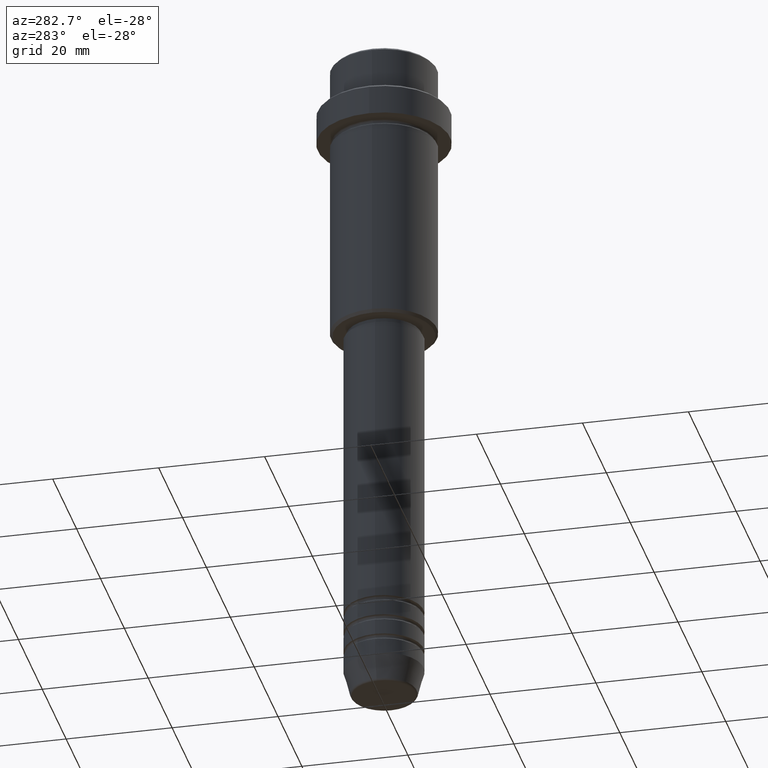
[diagram: clean part render]
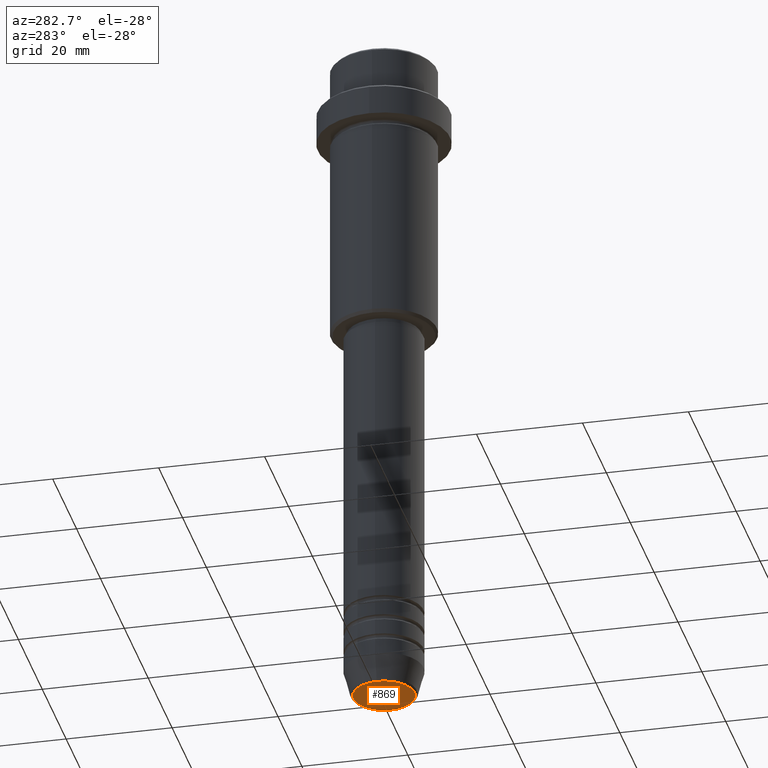
[diagram: same view with one face highlighted and labeled with its STEP entity id]
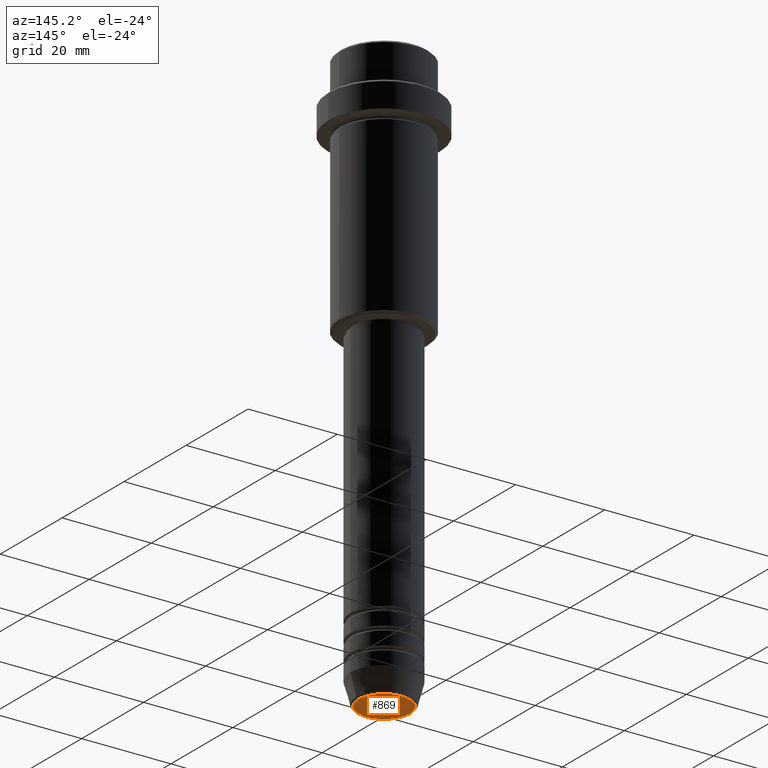
[diagram: same view with one face highlighted and labeled with its STEP entity id]
A machine part, auxiliary view. The second image highlights one B-rep face of the part: STEP entity #869.
A second angle (auxiliary view) of the same face is appended — the face is thin or edge-on in the first view.
In plain terms, the highlighted planar face has unit normal (0, -0, 1).
Its self-contained STEP definition (entity closure, byte-faithful):
#25 = AXIS2_PLACEMENT_3D ( 'NONE', #1209, #676, #670 ) ;
#68 = DIRECTION ( 'NONE',  ( 0.000000000000000000, 0.000000000000000000, -1.000000000000000000 ) ) ;
#168 = CARTESIAN_POINT ( 'NONE',  ( 0.000000000000000000, 0.000000000000000000, -130.0000000000000000 ) ) ;
#262 = AXIS2_PLACEMENT_3D ( 'NONE', #498, #1350, #841 ) ;
#388 = ORIENTED_EDGE ( 'NONE', *, *, #691, .T. ) ;
#424 = CIRCLE ( 'NONE', #25, 5.776590543854901227 ) ;
#453 = CARTESIAN_POINT ( 'NONE',  ( 5.776590543854901227, 0.000000000000000000, -130.0000000000000000 ) ) ;
#455 = EDGE_CURVE ( 'NONE', #1258, #725, #962, .T. ) ;
#498 = CARTESIAN_POINT ( 'NONE',  ( 0.000000000000000000, 0.000000000000000000, -130.0000000000000000 ) ) ;
#500 = ORIENTED_EDGE ( 'NONE', *, *, #455, .T. ) ;
#507 = DIRECTION ( 'NONE',  ( 1.000000000000000000, 0.000000000000000000, 0.000000000000000000 ) ) ;
#670 = DIRECTION ( 'NONE',  ( 1.000000000000000000, 0.000000000000000000, 0.000000000000000000 ) ) ;
#676 = DIRECTION ( 'NONE',  ( 0.000000000000000000, 0.000000000000000000, -1.000000000000000000 ) ) ;
#691 = EDGE_CURVE ( 'NONE', #725, #1258, #424, .T. ) ;
#695 = EDGE_LOOP ( 'NONE', ( #388, #500 ) ) ;
#725 = VERTEX_POINT ( 'NONE', #453 ) ;
#795 = AXIS2_PLACEMENT_3D ( 'NONE', #168, #68, #507 ) ;
#816 = PLANE ( 'NONE',  #262 ) ;
#826 = FACE_OUTER_BOUND ( 'NONE', #695, .T. ) ;
#841 = DIRECTION ( 'NONE',  ( 1.000000000000000000, 0.000000000000000000, 0.000000000000000000 ) ) ;
#869 = ADVANCED_FACE ( 'NONE', ( #826 ), #816, .F. ) ;
#962 = CIRCLE ( 'NONE', #795, 5.776590543854901227 ) ;
#1209 = CARTESIAN_POINT ( 'NONE',  ( 0.000000000000000000, 0.000000000000000000, -130.0000000000000000 ) ) ;
#1238 = CARTESIAN_POINT ( 'NONE',  ( -5.776590543854901227, 7.370012612361442642E-16, -130.0000000000000000 ) ) ;
#1258 = VERTEX_POINT ( 'NONE', #1238 ) ;
#1350 = DIRECTION ( 'NONE',  ( 0.000000000000000000, -0.000000000000000000, 1.000000000000000000 ) ) ;